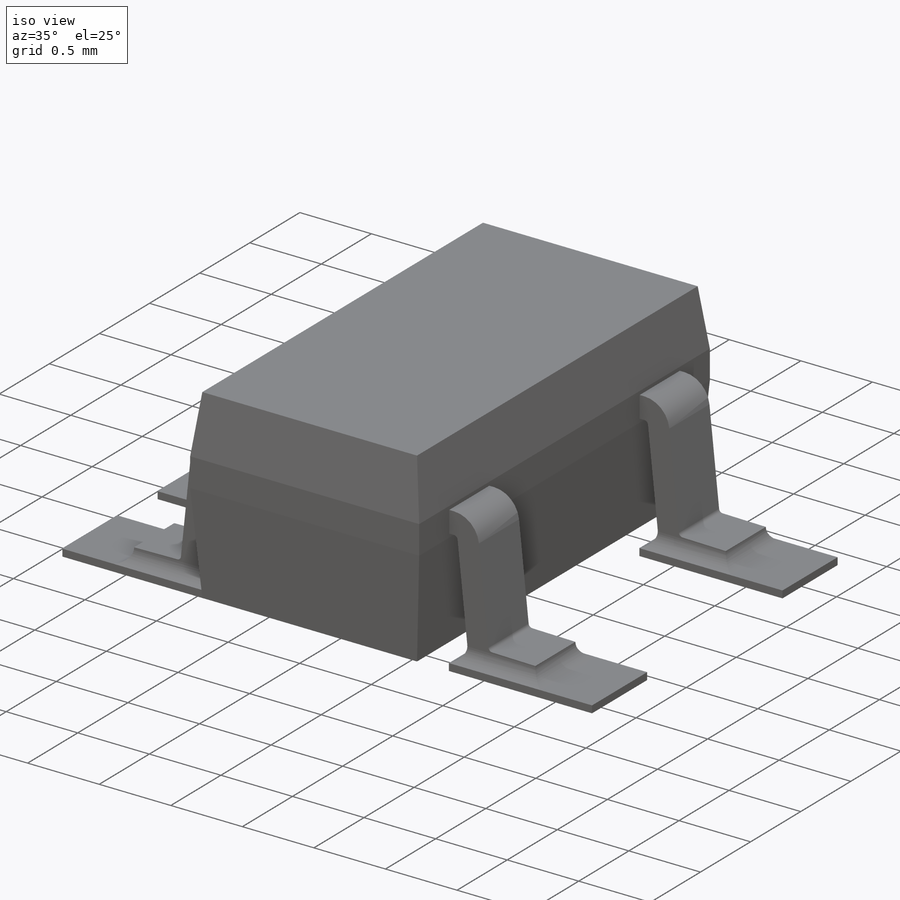
[diagram: iso view]
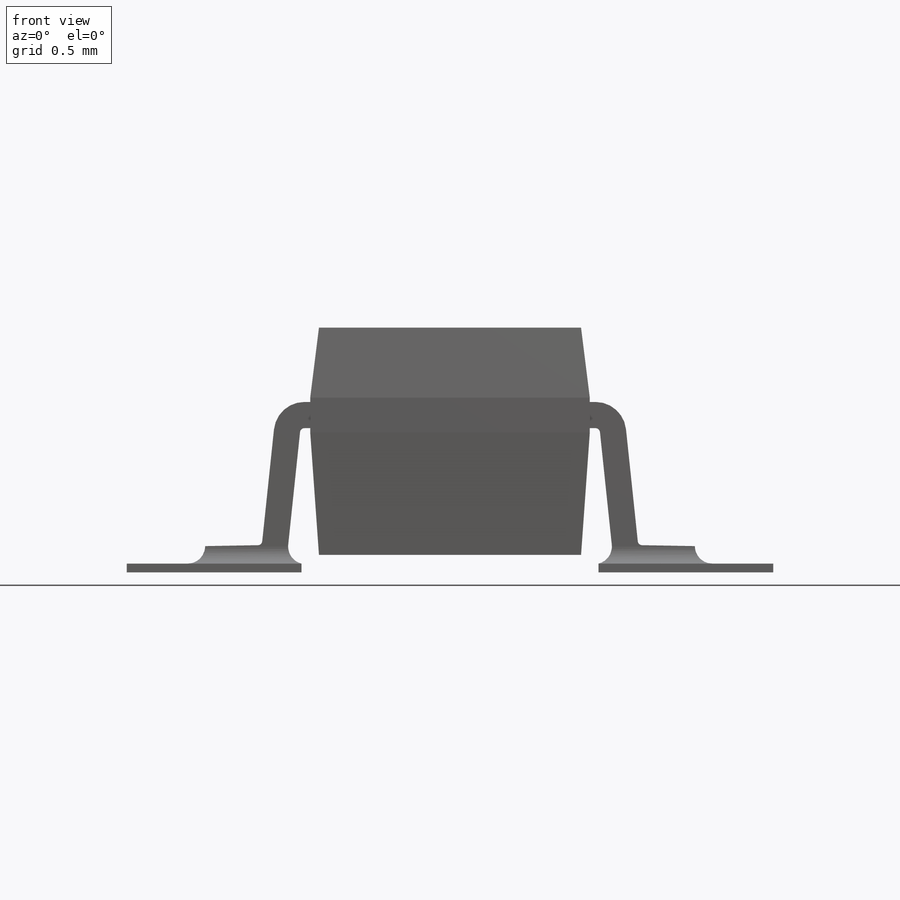
[diagram: front view]
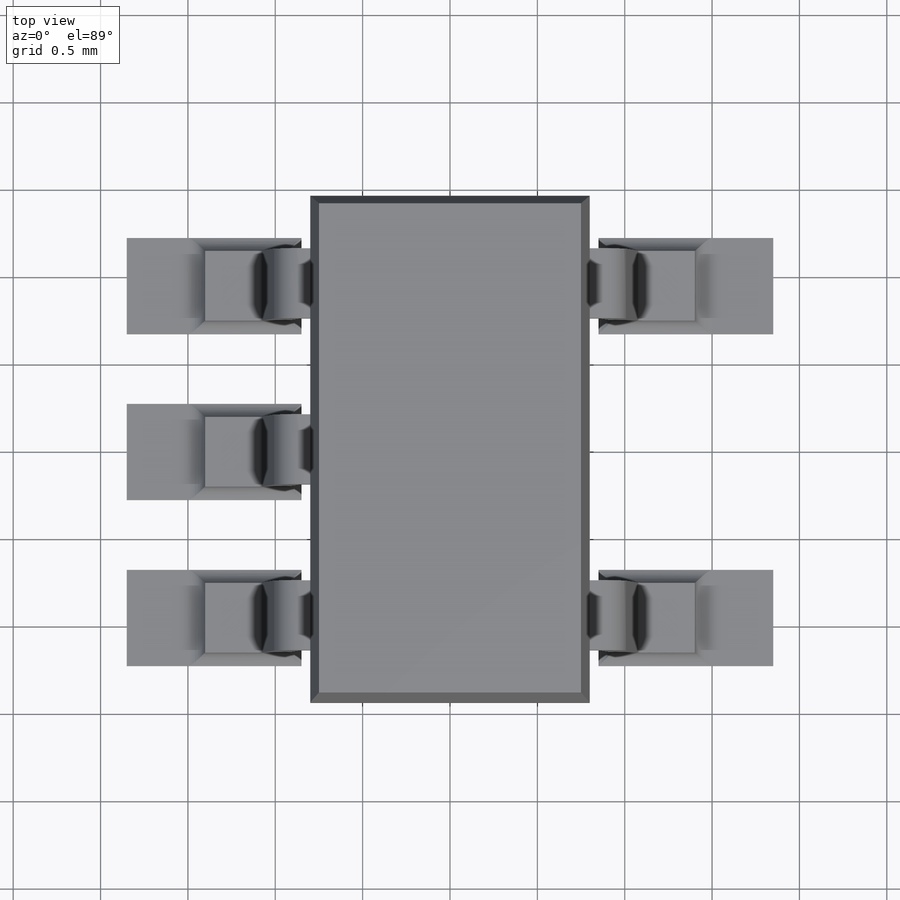
[diagram: top view]
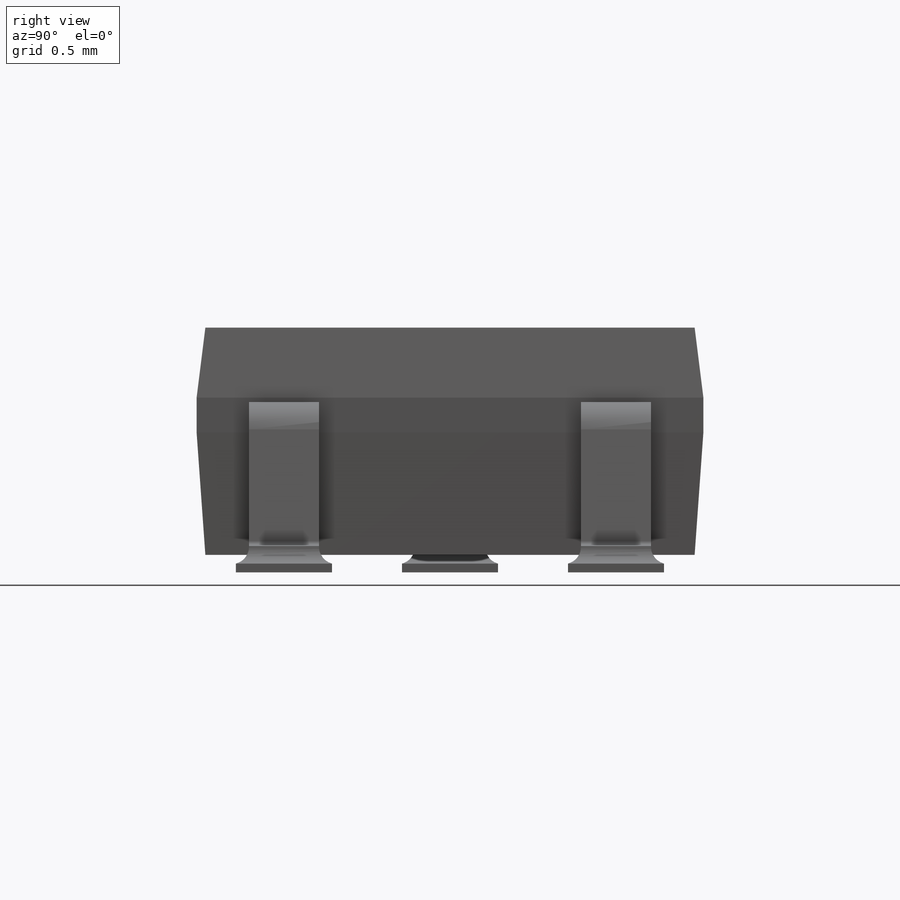
[diagram: right view]
SOLIDWORKS PART (.sldprt)
format: sldprt  version: not decoded by parser v0  size: 605,696 bytes
history: native  units: mm
features: sketch x5, plane x3, extrude x2, cut_extrude x2, material x1, fillet x1, pattern_linear x1 (+13 scaffold rows collapsed)
feature tree (28):
  scaffold x13  (default folders/planes/origin — collapsed)
  material  "Material <not specified>"
  plane  "Plane1"
  plane  "Plane5"  Offset=0.95mm
  sketch  "Sketch1"  dims[c1.D5=4.0mm c1.D1=1.3mm c1.D2=1.6mm c1.D3=0.8mm c1.D4=0.1mm c1.D6=1.5mm c2.D5=0.2mm c2.D7=0.75mm c2.D8=0.05mm c2.D9=3.9mm c2.D2=1.6mm c2.D3=0.8mm c3.D9=0.8mm]
  extrude  "Boss-Extrude1"  Depth=2.9mm
  plane  "Plane2"
  sketch  "Sketch4"  dims[D1=0.05mm D2=0.2mm D3=0.2mm D4=0.05mm]
  cut_extrude  "Cut-Extrude2"  [1 undecoded]
  sketch  "Sketch2"  dims[c1.D8=0.1mm c1.D1=2.8mm c1.D2=6.0mm c1.D3=3.0mm c1.D4=0.925mm c1.D5=5.0mm c2.D4=0.875mm c2.D5=0.8mm c2.D6=5.5mm c3.D4=0.9mm c3.D6=0.7mm c3.D7=1.1mm c3.D2=0.7mm c3.D3=~0.25592mm c4.D3=1.0deg c4.D7=5.83mm c5.D7=1.0deg c5.D9=1.4mm c5.D2=~0.778221mm c6.D2=6.0deg c6.D6=~0.802218mm c7.D6=6.0deg c7.D10=0.4mm c7.D11=0.4mm c7.D12=0.075mm c7.D13=0.075mm c7.D1=0.4mm c7.D5=0.15mm c8.D6=1.0mm c8.D7=0.0001mm]
  sketch  "Sketch5"  dims[c1.D1=0.75mm c1.D2=0.25mm c1.D3=0.25mm c1.D4=1.35mm c1.D5=1.35mm c2.D1=0.55mm c2.D2=1.0mm c2.D3=1.85mm c2.D4=1.85mm c2.D5=0.675mm]
  extrude  "Boss-Extrude2"  Depth=0.05mm
  fillet  "Fillet1"  Radius=0.1mm
  pattern_linear  "LPattern1"  Count1=3 Count2=1 Spacing1=0.95mm Spacing2=10mm
  sketch  "Sketch6"  dims[D1=1.0mm D2=0.5mm D3=2.0mm]
  cut_extrude  "Cut-Extrude3"  Depth=10mm
decode coverage: 10 of 11 modeling features carry decoded parameters
note: ~ marks probable driven/reference dimensions
note: 1 parameter value undecoded
note: suppression state not decoded; provenance and decode notes live in map.json
